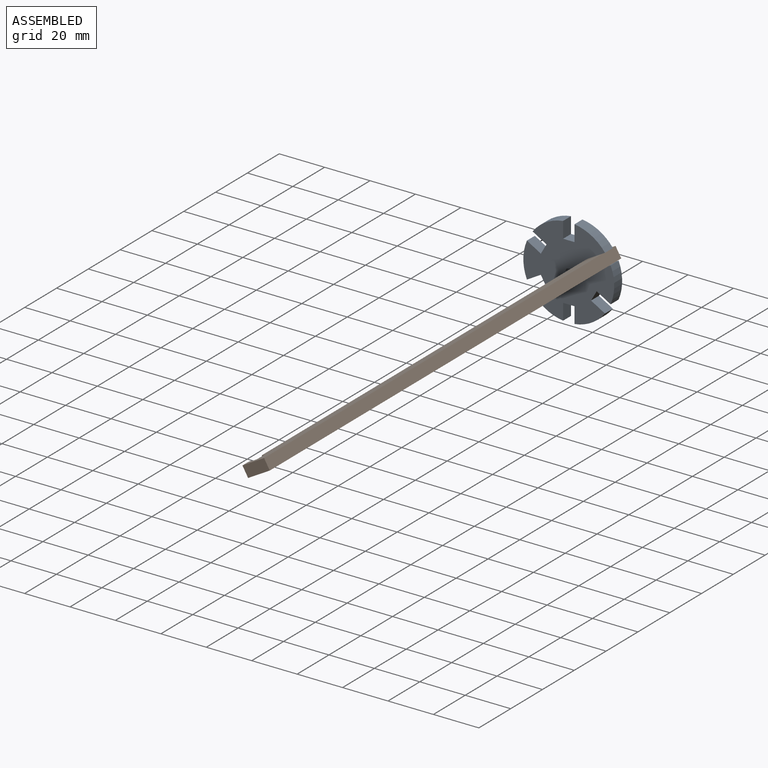
[diagram: assembled view]
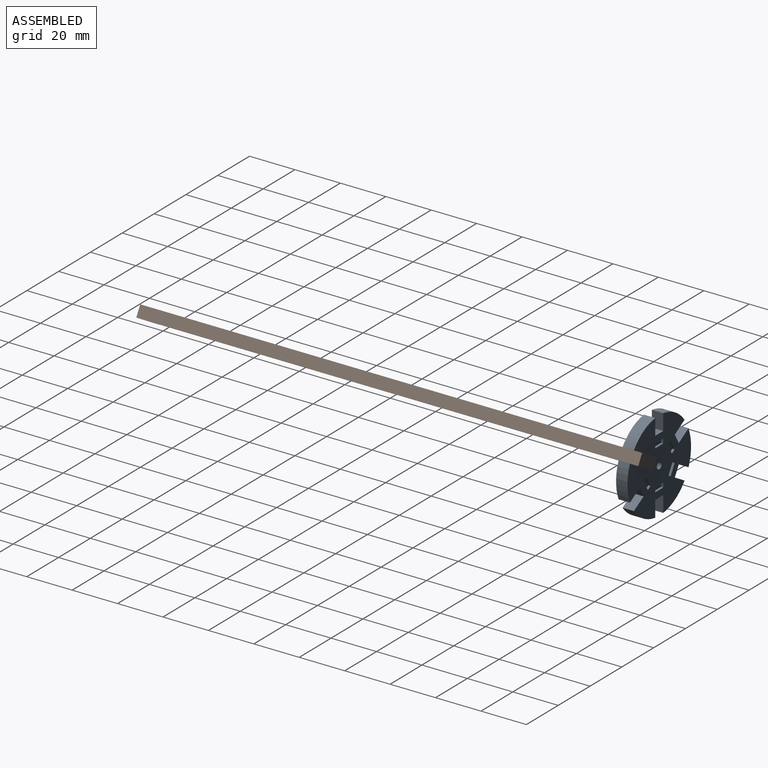
[diagram: assembled view, second angle]
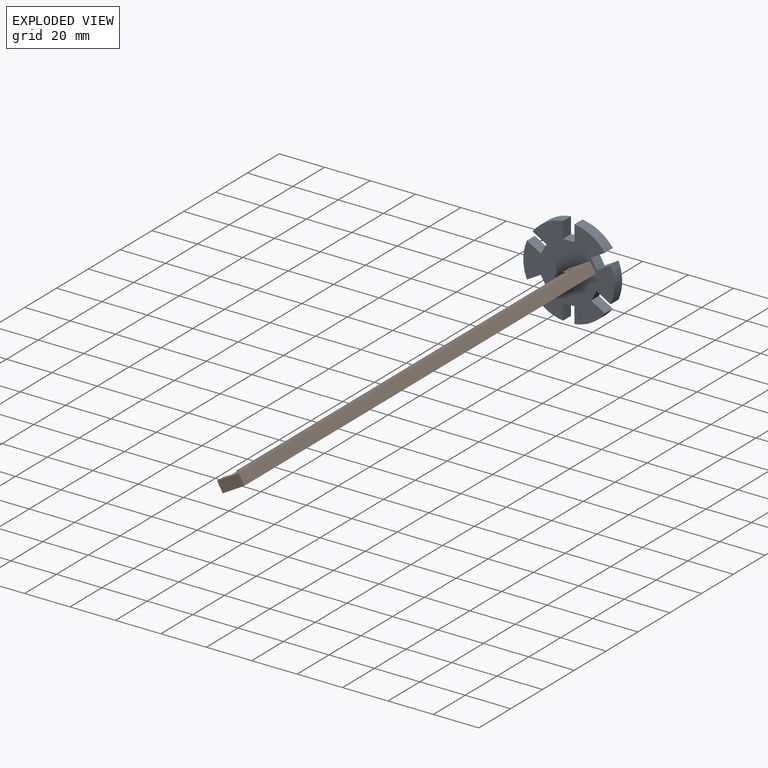
[diagram: exploded view]
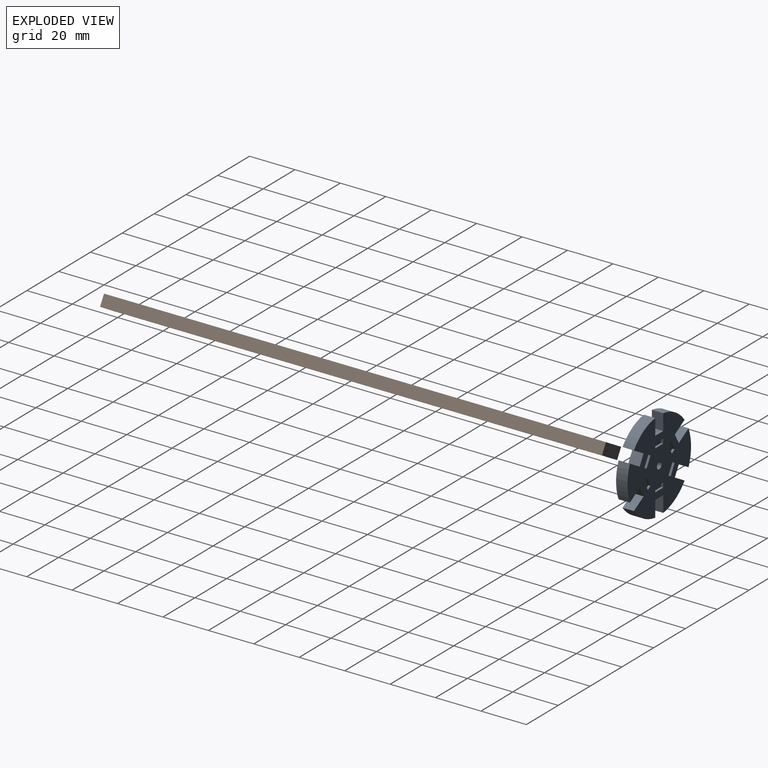
[diagram: exploded view, second angle]
ASSEMBLY  parts=2 mates=3
PART A: 57 faces, bbox 40x5x39.7 mm
  f0: plane 40x39.69mm, normal (0,1,0), area 973.9mm2, adj f1,f2,f3,f4,f5,f6,f7,f8
  f1: plane 7.09x5mm, normal (-1,0,0), area 35.4mm2, adj f0,f2,f24,f26
  f2: plane 5x5mm, normal (0,0,1), area 25mm2, adj f0,f1,f3,f26
  f3: plane 7.09x5mm, normal (1,0,0), area 35.4mm2, adj f0,f2,f4,f26
  f4: cylinder r=20mm len=13.43mm, axis (0,1,0), area 79.7mm2, adj f0,f3,f5,f26
  f5: plane 6.14x5mm, normal (-0.5,0,-0.87), area 35.4mm2, adj f0,f4,f6,f26
  f6: plane 5x4.33mm, normal (-0.87,0,0.5), area 25mm2, adj f0,f5,f7,f26
  f7: plane 6.14x5mm, normal (0.5,0,0.87), area 35.4mm2, adj f0,f6,f8,f26
  f8: cylinder r=20mm len=15.51mm, axis (0,1,0), area 79.7mm2, adj f0,f7,f9,f26
  f9: plane 6.14x5mm, normal (0.5,0,-0.87), area 35.4mm2, adj f0,f8,f10,f26
  f10: plane 5x4.33mm, normal (-0.87,0,-0.5), area 25mm2, adj f0,f9,f11,f26
  f11: plane 6.14x5mm, normal (-0.5,0,0.87), area 35.4mm2, adj f0,f10,f12,f26
  f12: cylinder r=20mm len=13.43mm, axis (0,1,0), area 79.7mm2, adj f0,f11,f13,f26
  f13: plane 7.09x5mm, normal (1,0,0), area 35.4mm2, adj f0,f12,f14,f26
  f14: plane 5x5mm, normal (0,0,-1), area 25mm2, adj f0,f13,f15,f26
  f15: plane 7.09x5mm, normal (-1,0,0), area 35.4mm2, adj f0,f14,f16,f26
  f16: cylinder r=20mm len=13.43mm, axis (0,1,0), area 79.7mm2, adj f0,f15,f17,f26
  f17: plane 6.14x5mm, normal (0.5,0,0.87), area 35.4mm2, adj f0,f16,f18,f26
  f18: plane 5x4.33mm, normal (0.87,0,-0.5), area 25mm2, adj f0,f17,f19,f26
  f19: plane 6.14x5mm, normal (-0.5,0,-0.87), area 35.4mm2, adj f0,f18,f20,f26
  f20: cylinder r=20mm len=15.51mm, axis (0,1,0), area 79.7mm2, adj f0,f19,f21,f26
  f21: plane 6.14x5mm, normal (-0.5,0,0.87), area 35.4mm2, adj f0,f20,f22,f26
  f22: plane 5x4.33mm, normal (0.87,0,0.5), area 25mm2, adj f0,f21,f23,f26
  f23: plane 6.14x5mm, normal (0.5,0,-0.87), area 35.4mm2, adj f0,f22,f24,f26
  f24: cylinder r=20mm len=13.43mm, axis (0,1,0), area 79.7mm2, adj f0,f1,f23,f26
  f25: cylinder r=1.5mm len=5mm, axis (0,1,0), area 47.1mm2, adj f0,f26
  f26: plane 40x39.69mm, normal (0,-1,0), area 1033.9mm2, adj f1,f2,f3,f4,f5,f6,f7,f8
  f27: plane 1.73x1mm, normal (-0.5,0,-0.87), area 2mm2, adj f0,f28,f30,f31
  f28: plane 4.33x2.5mm, normal (0.87,0,-0.5), area 5mm2, adj f0,f27,f29,f31
  f29: plane 1.73x1mm, normal (0.5,0,0.87), area 2mm2, adj f0,f28,f30,f31
  f30: plane 4.33x2.5mm, normal (-0.87,0,0.5), area 5mm2, adj f0,f27,f29,f31
  f31: plane 5.33x4.23mm, normal (0,1,0), area 10mm2, adj f27,f28,f29,f30
  f32: plane 2x1mm, normal (-1,0,0), area 2mm2, adj f0,f33,f35,f36
  f33: plane 5x1mm, normal (0,0,-1), area 5mm2, adj f0,f32,f34,f36
  f34: plane 2x1mm, normal (1,0,0), area 2mm2, adj f0,f33,f35,f36
  f35: plane 5x1mm, normal (0,0,1), area 5mm2, adj f0,f32,f34,f36
  f36: plane 5x2mm, normal (0,1,0), area 10mm2, adj f32,f33,f34,f35
  f37: plane 4.33x2.5mm, normal (-0.87,0,-0.5), area 5mm2, adj f0,f38,f40,f41
  f38: plane 1.73x1mm, normal (0.5,0,-0.87), area 2mm2, adj f0,f37,f39,f41
  f39: plane 4.33x2.5mm, normal (0.87,0,0.5), area 5mm2, adj f0,f38,f40,f41
  f40: plane 1.73x1mm, normal (-0.5,0,0.87), area 2mm2, adj f0,f37,f39,f41
  f41: plane 5.33x4.23mm, normal (0,1,0), area 10mm2, adj f37,f38,f39,f40
  f42: plane 4.33x2.5mm, normal (0.87,0,-0.5), area 5mm2, adj f0,f43,f45,f46
  f43: plane 1.73x1mm, normal (0.5,0,0.87), area 2mm2, adj f0,f42,f44,f46
  f44: plane 4.33x2.5mm, normal (-0.87,0,0.5), area 5mm2, adj f0,f43,f45,f46
  f45: plane 1.73x1mm, normal (-0.5,0,-0.87), area 2mm2, adj f0,f42,f44,f46
  f46: plane 5.33x4.23mm, normal (0,1,0), area 10mm2, adj f42,f43,f44,f45
  f47: plane 5x1mm, normal (0,0,-1), area 5mm2, adj f0,f48,f50,f51
  f48: plane 2x1mm, normal (1,0,0), area 2mm2, adj f0,f47,f49,f51
  f49: plane 5x1mm, normal (0,0,1), area 5mm2, adj f0,f48,f50,f51
  f50: plane 2x1mm, normal (-1,0,0), area 2mm2, adj f0,f47,f49,f51
  f51: plane 5x2mm, normal (0,1,0), area 10mm2, adj f47,f48,f49,f50
  f52: plane 1.73x1mm, normal (-0.5,0,0.87), area 2mm2, adj f0,f53,f55,f56
  f53: plane 4.33x2.5mm, normal (-0.87,0,-0.5), area 5mm2, adj f0,f52,f54,f56
  f54: plane 1.73x1mm, normal (0.5,0,-0.87), area 2mm2, adj f0,f53,f55,f56
  f55: plane 4.33x2.5mm, normal (0.87,0,0.5), area 5mm2, adj f0,f52,f54,f56
  f56: plane 5.33x4.23mm, normal (0,1,0), area 10mm2, adj f52,f53,f54,f55
PART B: 24 faces, bbox 221x5x11 mm
  f0: plane 5x3mm, normal (1,0,0), area 15mm2, adj f1,f15,f16,f17
  f1: plane 5x5mm, normal (0,0,-1), area 25mm2, adj f0,f2,f16,f17
  f2: plane 5x1.2mm, normal (-1,0,0), area 6mm2, adj f1,f16,f17,f20
  f3: plane 203.4x5mm, normal (0,0,-1), area 1017mm2, adj f16,f17,f20,f23
  f4: plane 5x1.2mm, normal (1,0,0), area 6mm2, adj f5,f16,f17,f23
  f5: plane 5x5mm, normal (0,0,-1), area 25mm2, adj f4,f6,f16,f17
  f6: plane 5x3mm, normal (-1,0,0), area 15mm2, adj f5,f7,f16,f17
  f7: plane 5x0.2mm, normal (0,0,1), area 1mm2, adj f6,f16,f17,f21
  f8: plane 5x0.4mm, normal (-1,0,0), area 2mm2, adj f16,f17,f21,f22
  f9: plane 5x3.2mm, normal (0,0,-1), area 16mm2, adj f10,f16,f17,f22
  f10: plane 11x5mm, normal (1,0,0), area 55mm2, adj f9,f11,f16,f17
  f11: plane 221x5mm, normal (0,0,1), area 1105mm2, adj f10,f12,f16,f17
  f12: plane 11x5mm, normal (-1,0,0), area 55mm2, adj f11,f13,f16,f17
  f13: plane 5x3.2mm, normal (0,0,-1), area 16mm2, adj f12,f16,f17,f18
  f14: plane 5x0.4mm, normal (1,0,0), area 2mm2, adj f16,f17,f18,f19
  f15: plane 5x0.2mm, normal (0,0,1), area 1mm2, adj f0,f16,f17,f19
  f16: plane 221x11mm, normal (0,-1,0), area 1769.2mm2, adj f0,f1,f2,f3,f4,f5,f6,f7
  f17: plane 221x11mm, normal (0,1,0), area 1769.2mm2, adj f0,f1,f2,f3,f4,f5,f6,f7
  f18: cylinder r=0.8mm len=5mm, axis (0,1,0), area 6.3mm2, adj f13,f14,f16,f17
  f19: cylinder r=0.8mm len=5mm, axis (0,1,0), area 6.3mm2, adj f14,f15,f16,f17
  f20: cylinder r=0.8mm len=5mm, axis (0,-1,0), area 6.3mm2, adj f2,f3,f16,f17
  f21: cylinder r=0.8mm len=5mm, axis (0,1,0), area 6.3mm2, adj f7,f8,f16,f17
  f22: cylinder r=0.8mm len=5mm, axis (0,-1,0), area 6.3mm2, adj f8,f9,f16,f17
  f23: cylinder r=0.8mm len=5mm, axis (0,-1,0), area 6.3mm2, adj f3,f4,f16,f17
PLACE A t=(32.29,-38.93,35.86)mm fixed
PLACE B rot(axis=(0.45,0.45,0.77),104.5deg) t=(3.57,-216.84,22.17)mm
MATE planar A.f56 <-> B.f8  axis (0,1,0) through (39.87,-39.93,40.24)mm
MATE planar B.f7 <-> A.f53  axis (0.87,0,0.5) through (40.74,-39.03,40.74)mm
MATE planar A.f23 <-> B.f17  axis (0.5,0,-0.87) through (45.16,-41.43,46.18)mm
